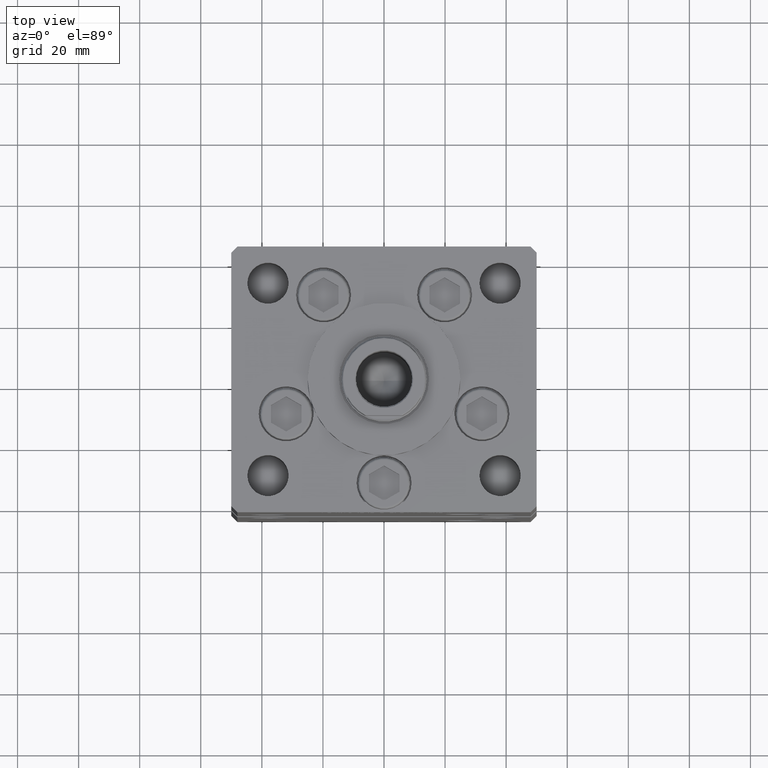
[diagram: clean part render]
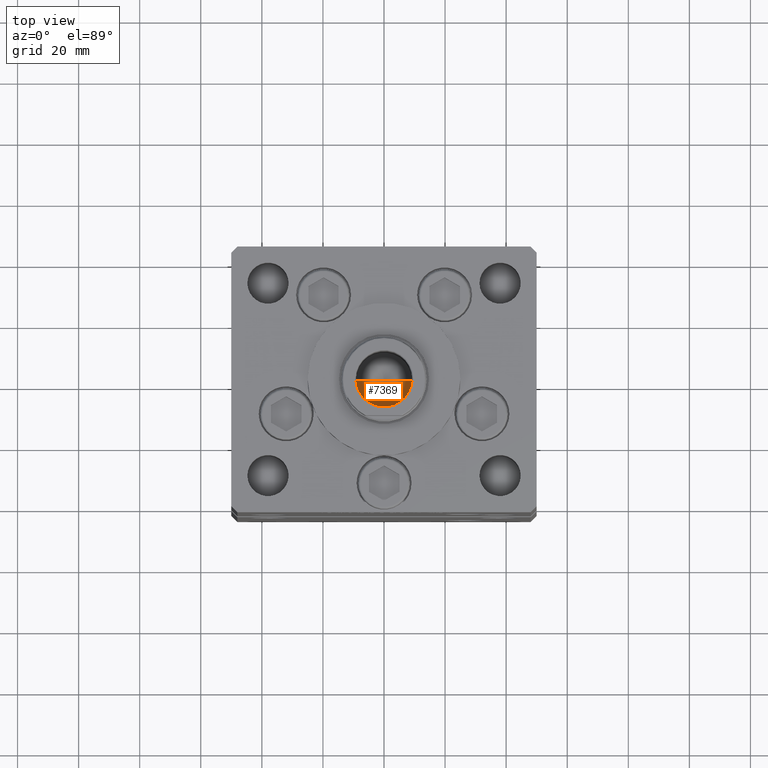
[diagram: same view with one face highlighted and labeled with its STEP entity id]
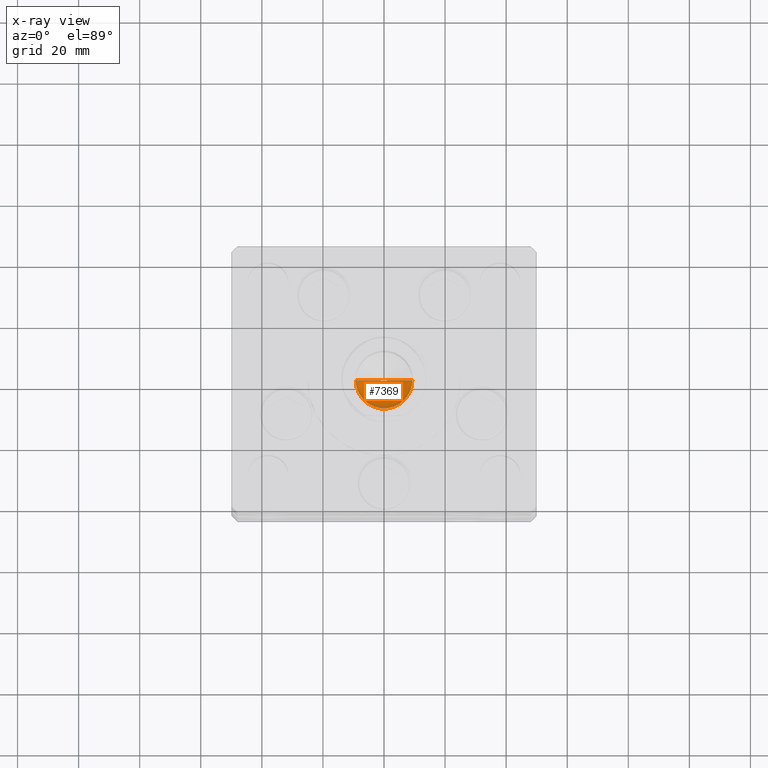
[diagram: x-ray of the same camera — body ghosted, the highlighted face saturated]
A machine part, top view. The second image highlights one B-rep face of the part: STEP entity #7369.
The next image is the same camera in x-ray: the body ghosted, the highlighted face saturated — about 9% of this face is hidden behind the body in this view.
In plain terms, the highlighted conical surface has half-angle 59 deg.
Its self-contained STEP definition (entity closure, byte-faithful):
#520 = DIRECTION ( 'NONE',  ( 1.000000000000000000, 0.000000000000000000, 0.000000000000000000 ) ) ;
#985 = DIRECTION ( 'NONE',  ( -0.000000000000000000, -0.000000000000000000, 1.000000000000000000 ) ) ;
#1422 = LINE ( 'NONE', #13790, #29036 ) ;
#1817 = ORIENTED_EDGE ( 'NONE', *, *, #45881, .T. ) ;
#2794 = EDGE_LOOP ( 'NONE', ( #9674, #51212, #1817 ) ) ;
#4977 = AXIS2_PLACEMENT_3D ( 'NONE', #9058, #985, #37545 ) ;
#6875 = EDGE_CURVE ( 'NONE', #45416, #28902, #1422, .T. ) ;
#7369 = ADVANCED_FACE ( 'NONE', ( #30291 ), #30743, .F. ) ;
#9058 = CARTESIAN_POINT ( 'NONE',  ( 0.000000000000000000, 0.000000000000000000, 130.2500000000000000 ) ) ;
#9674 = ORIENTED_EDGE ( 'NONE', *, *, #11929, .F. ) ;
#10173 = VECTOR ( 'NONE', #22186, 1000.000000000000000 ) ;
#10342 = CARTESIAN_POINT ( 'NONE',  ( 9.249999999999994671, 0.000000000000000000, 130.2500000000000000 ) ) ;
#11929 = EDGE_CURVE ( 'NONE', #45416, #36076, #42362, .T. ) ;
#13790 = CARTESIAN_POINT ( 'NONE',  ( -9.249999999999994671, 1.132798289211300909E-15, 130.2500000000000000 ) ) ;
#13881 = CARTESIAN_POINT ( 'NONE',  ( -1.046994375366439223E-14, 0.000000000000000000, 124.6920392739950643 ) ) ;
#21496 = CARTESIAN_POINT ( 'NONE',  ( 0.000000000000000000, 0.000000000000000000, 130.2500000000000000 ) ) ;
#22186 = DIRECTION ( 'NONE',  ( 0.8571673007021117785, 0.000000000000000000, 0.5150380749100550437 ) ) ;
#27603 = CIRCLE ( 'NONE', #28460, 9.249999999999994671 ) ;
#28317 = CARTESIAN_POINT ( 'NONE',  ( -9.249999999999994671, 1.132798289211300909E-15, 130.2500000000000000 ) ) ;
#28460 = AXIS2_PLACEMENT_3D ( 'NONE', #21496, #38159, #520 ) ;
#28902 = VERTEX_POINT ( 'NONE', #28317 ) ;
#29036 = VECTOR ( 'NONE', #38514, 1000.000000000000000 ) ;
#30291 = FACE_OUTER_BOUND ( 'NONE', #2794, .T. ) ;
#30743 = CONICAL_SURFACE ( 'NONE', #4977, 9.249999999999994671, 1.029744258676653423 ) ;
#36076 = VERTEX_POINT ( 'NONE', #52661 ) ;
#37545 = DIRECTION ( 'NONE',  ( 1.000000000000000000, 0.000000000000000000, 0.000000000000000000 ) ) ;
#38159 = DIRECTION ( 'NONE',  ( -0.000000000000000000, -0.000000000000000000, 1.000000000000000000 ) ) ;
#38514 = DIRECTION ( 'NONE',  ( -0.8571673007021117785, 1.049727191138617956E-16, 0.5150380749100550437 ) ) ;
#42362 = LINE ( 'NONE', #10342, #10173 ) ;
#45416 = VERTEX_POINT ( 'NONE', #13881 ) ;
#45881 = EDGE_CURVE ( 'NONE', #28902, #36076, #27603, .T. ) ;
#51212 = ORIENTED_EDGE ( 'NONE', *, *, #6875, .T. ) ;
#52661 = CARTESIAN_POINT ( 'NONE',  ( 9.249999999999994671, 0.000000000000000000, 130.2500000000000000 ) ) ;